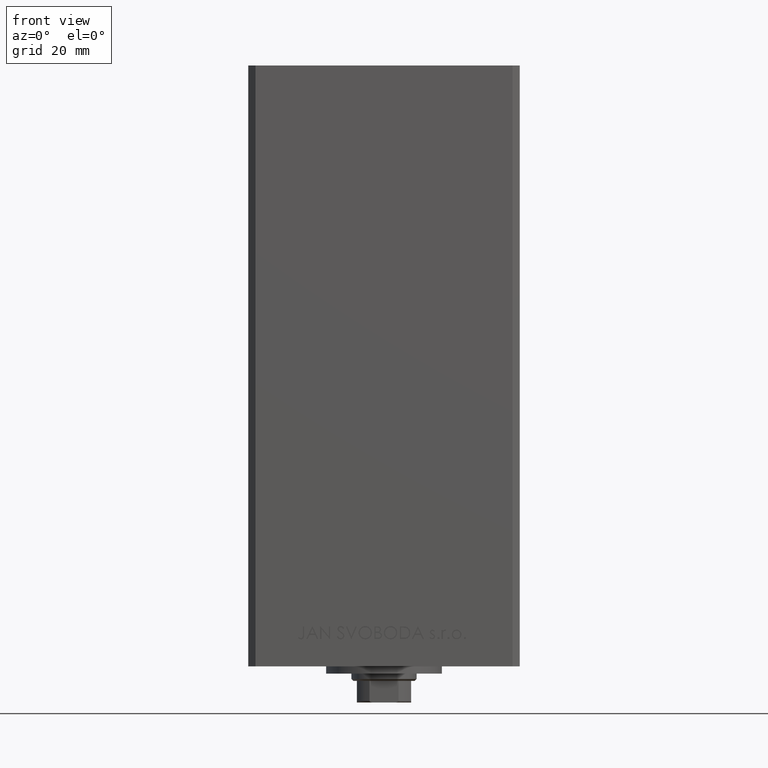
[diagram: clean part render]
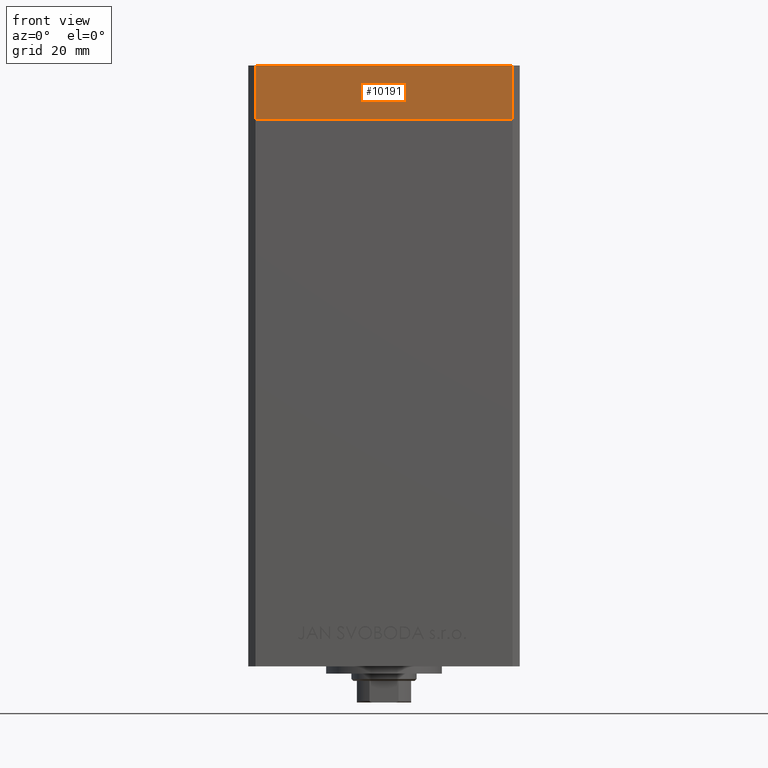
[diagram: same view with one face highlighted and labeled with its STEP entity id]
A machine part, front view. The second image highlights one B-rep face of the part: STEP entity #10191.
In plain terms, the highlighted planar face has unit normal (0, -1, 0).
Its self-contained STEP definition (entity closure, byte-faithful):
#2534 = DIRECTION ( 'NONE',  ( 1.000000000000000000, 9.773090005503140331E-17, 0.000000000000000000 ) ) ;
#4723 = DIRECTION ( 'NONE',  ( 0.000000000000000000, 0.000000000000000000, 1.000000000000000000 ) ) ;
#6913 = CARTESIAN_POINT ( 'NONE',  ( -35.49999999999998579, -32.50000000000001421, 0.000000000000000000 ) ) ;
#7886 = LINE ( 'NONE', #19270, #16007 ) ;
#7917 = ORIENTED_EDGE ( 'NONE', *, *, #39704, .F. ) ;
#8439 = VERTEX_POINT ( 'NONE', #16883 ) ;
#8974 = EDGE_CURVE ( 'NONE', #8439, #39230, #7886, .T. ) ;
#10191 = ADVANCED_FACE ( 'NONE', ( #42524 ), #12092, .T. ) ;
#11600 = DIRECTION ( 'NONE',  ( 0.000000000000000000, 0.000000000000000000, 1.000000000000000000 ) ) ;
#11899 = VERTEX_POINT ( 'NONE', #21467 ) ;
#12092 = PLANE ( 'NONE',  #19967 ) ;
#14579 = EDGE_CURVE ( 'NONE', #40171, #11899, #35146, .T. ) ;
#16007 = VECTOR ( 'NONE', #11600, 1000.000000000000000 ) ;
#16883 = CARTESIAN_POINT ( 'NONE',  ( -35.49999999999998579, -32.50000000000001421, -15.00000000000000000 ) ) ;
#18933 = VECTOR ( 'NONE', #41300, 1000.000000000000000 ) ;
#19270 = CARTESIAN_POINT ( 'NONE',  ( -35.49999999999998579, -32.50000000000001421, -15.00000000000000000 ) ) ;
#19341 = VECTOR ( 'NONE', #2534, 1000.000000000000000 ) ;
#19967 = AXIS2_PLACEMENT_3D ( 'NONE', #23475, #38573, #31133 ) ;
#21091 = ORIENTED_EDGE ( 'NONE', *, *, #22606, .T. ) ;
#21467 = CARTESIAN_POINT ( 'NONE',  ( 35.50000000000000711, -32.50000000000000711, 0.000000000000000000 ) ) ;
#22606 = EDGE_CURVE ( 'NONE', #8439, #40171, #47803, .T. ) ;
#23475 = CARTESIAN_POINT ( 'NONE',  ( -35.49999999999998579, -32.50000000000001421, -15.00000000000000000 ) ) ;
#27546 = CARTESIAN_POINT ( 'NONE',  ( 35.50000000000000711, -32.50000000000000711, -15.00000000000000000 ) ) ;
#27711 = CARTESIAN_POINT ( 'NONE',  ( 35.50000000000000711, -32.50000000000000711, -15.00000000000000000 ) ) ;
#28541 = ORIENTED_EDGE ( 'NONE', *, *, #8974, .F. ) ;
#30235 = VECTOR ( 'NONE', #4723, 1000.000000000000000 ) ;
#31133 = DIRECTION ( 'NONE',  ( 1.000000000000000000, 9.773090005503140331E-17, 0.000000000000000000 ) ) ;
#31314 = EDGE_LOOP ( 'NONE', ( #7917, #28541, #21091, #35297 ) ) ;
#32608 = CARTESIAN_POINT ( 'NONE',  ( -35.49999999999998579, -32.50000000000001421, 0.000000000000000000 ) ) ;
#35146 = LINE ( 'NONE', #27711, #30235 ) ;
#35297 = ORIENTED_EDGE ( 'NONE', *, *, #14579, .T. ) ;
#36424 = CARTESIAN_POINT ( 'NONE',  ( -35.49999999999998579, -32.50000000000001421, -15.00000000000000000 ) ) ;
#38573 = DIRECTION ( 'NONE',  ( 9.773090005503140331E-17, -1.000000000000000000, 0.000000000000000000 ) ) ;
#39230 = VERTEX_POINT ( 'NONE', #32608 ) ;
#39704 = EDGE_CURVE ( 'NONE', #39230, #11899, #40809, .T. ) ;
#40171 = VERTEX_POINT ( 'NONE', #27546 ) ;
#40809 = LINE ( 'NONE', #6913, #18933 ) ;
#41300 = DIRECTION ( 'NONE',  ( 1.000000000000000000, 9.773090005503140331E-17, 0.000000000000000000 ) ) ;
#42524 = FACE_OUTER_BOUND ( 'NONE', #31314, .T. ) ;
#47803 = LINE ( 'NONE', #36424, #19341 ) ;